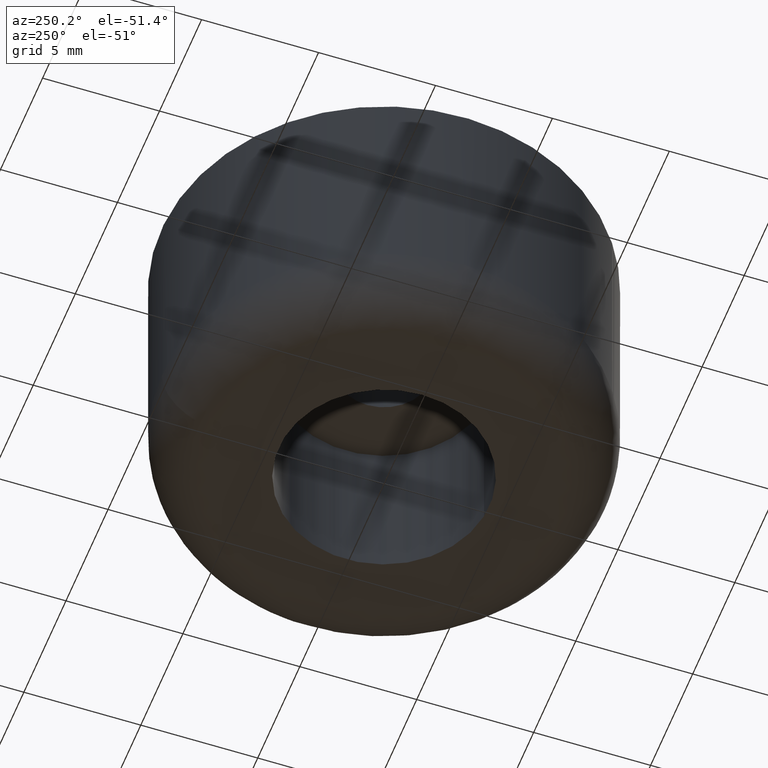
[diagram: clean part render]
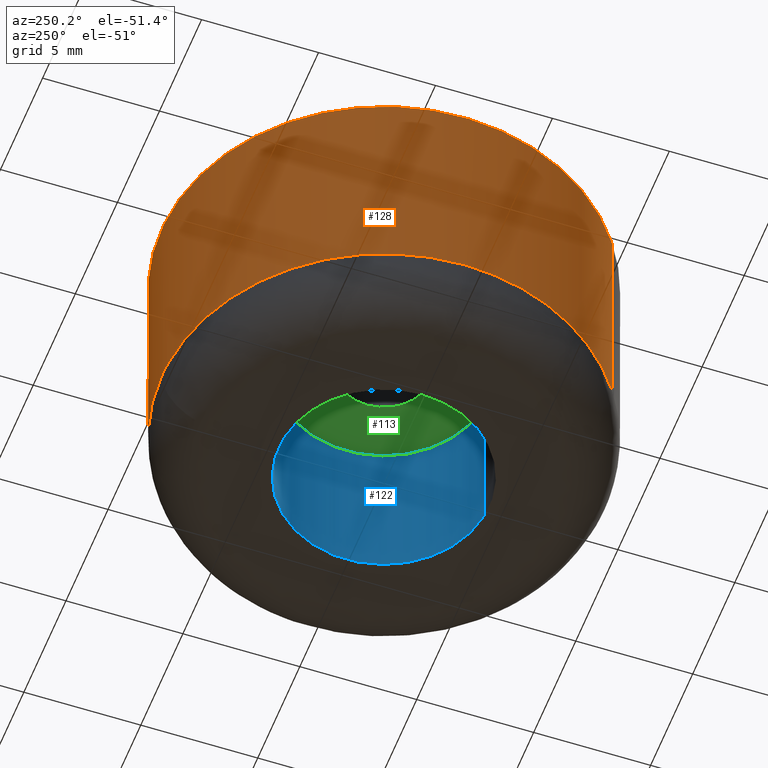
[diagram: same view with three faces highlighted in distinct colors, each labeled with its STEP entity id]
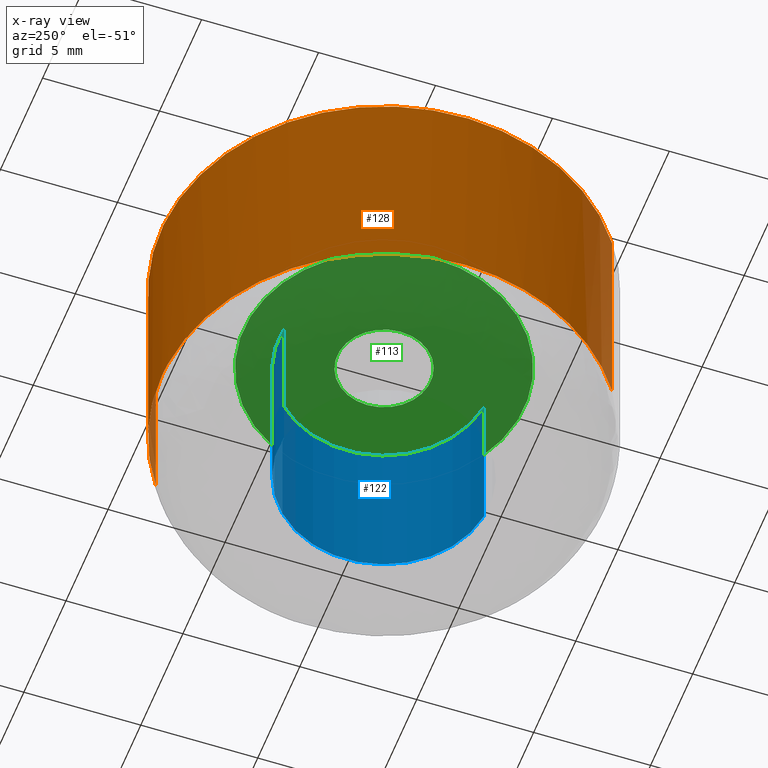
[diagram: x-ray of the same camera — body ghosted, the three highlighted faces saturated]
A machine part, auxiliary view with three faces highlighted in distinct colors.
The next image is the same camera in x-ray (body ghosted, the three faces saturated) — at least one of them is partly hidden behind the body in this view.
Their STEP definitions:

[orange] entity #128 — the highlighted cylindrical surface (partial cylindrical patch) has radius 9.5 mm, axis along (-0, 0, 1).
#128=ADVANCED_FACE('',(#299),#298,.T.);
#298=CYLINDRICAL_SURFACE('',#427,9.50000000000E+000);
#299=FACE_OUTER_BOUND('',#428,.T.);
#424=CARTESIAN_POINT('',(-3.04271018864E-015,3.51144497067E-015,1.22375000000E+001));
#425=DIRECTION('',(-5.20716812179E-016,7.03630289371E-016,1.00000000000E+000));
#426=DIRECTION('',(5.70840232490E-001,8.21061160311E-001,-2.80477395695E-016));
#427=AXIS2_PLACEMENT_3D('',#424,#425,#426);
#428=EDGE_LOOP('',(#572,#573,#574,#575,#576,#577,#578,#579));
#572=ORIENTED_EDGE('',*,*,#625,.T.);
#573=ORIENTED_EDGE('',*,*,#648,.F.);
#574=ORIENTED_EDGE('',*,*,#649,.F.);
#575=ORIENTED_EDGE('',*,*,#650,.F.);
#576=ORIENTED_EDGE('',*,*,#651,.F.);
#577=ORIENTED_EDGE('',*,*,#652,.F.);
#578=ORIENTED_EDGE('',*,*,#653,.F.);
#579=ORIENTED_EDGE('',*,*,#654,.T.);
#625=EDGE_CURVE('',#818,#810,#819,.T.);
#648=EDGE_CURVE('',#972,#810,#973,.T.);
#649=EDGE_CURVE('',#979,#972,#980,.T.);
#650=EDGE_CURVE('',#986,#979,#987,.T.);
#651=EDGE_CURVE('',#993,#986,#994,.T.);
#652=EDGE_CURVE('',#1000,#993,#1001,.T.);
#653=EDGE_CURVE('',#1007,#1000,#1008,.T.);
#654=EDGE_CURVE('',#1007,#818,#1014,.T.);
#810=VERTEX_POINT('',#1150);
#818=VERTEX_POINT('',#1156);
#819=CIRCLE('',#1160,9.50000000000E+000);
#972=VERTEX_POINT('',#1252);
#973=(BOUNDED_CURVE() B_SPLINE_CURVE(1,(#1253,#1254),.UNSPECIFIED.,.F.,.F.) B_SPLINE_CURVE_WITH_KNOTS((2,2),(8.33333343261E-002,9.16666667006E-001),.UNSPECIFIED.) CURVE() GEOMETRIC_REPRESENTATION_ITEM() RATIONAL_B_SPLINE_CURVE((1.00000000000E+000,1.00000000000E+000)) REPRESENTATION_ITEM('') );
#979=VERTEX_POINT('',#1255);
#980=CIRCLE('',#1259,9.50000000000E+000);
#986=VERTEX_POINT('',#1260);
#987=CIRCLE('',#1264,9.50000000000E+000);
#993=VERTEX_POINT('',#1265);
#994=CIRCLE('',#1269,9.50000000000E+000);
#1000=VERTEX_POINT('',#1270);
#1001=CIRCLE('',#1274,9.49999999947E+000);
#1007=VERTEX_POINT('',#1275);
#1008=CIRCLE('',#1279,9.50000000001E+000);
#1014=(BOUNDED_CURVE() B_SPLINE_CURVE(1,(#1280,#1281),.UNSPECIFIED.,.F.,.F.) B_SPLINE_CURVE_WITH_KNOTS((2,2),(8.33333333347E-002,9.16666666667E-001),.UNSPECIFIED.) CURVE() GEOMETRIC_REPRESENTATION_ITEM() RATIONAL_B_SPLINE_CURVE((7.50000000000E-001,7.50000000000E-001)) REPRESENTATION_ITEM('') );
#1150=CARTESIAN_POINT('',(5.42298194808E+000,7.80008120411E+000,1.20000000000E+001));
#1156=CARTESIAN_POINT('',(-5.42455823649E+000,-7.79898505826E+000,1.20000000000E+001));
#1157=CARTESIAN_POINT('',(-5.24913446043E-013,-2.26485497024E-014,1.20000000000E+001));
#1158=DIRECTION('',(2.07784528273E-015,1.74368434370E-015,-1.00000000000E+000));
#1159=DIRECTION('',(7.84585223781E-002,-9.96917378857E-001,-1.57528455486E-015));
#1160=AXIS2_PLACEMENT_3D('',#1157,#1158,#1159);
#1252=CARTESIAN_POINT('',(5.42298235624E+000,7.80008092035E+000,2.50000000054E+000));
#1253=CARTESIAN_POINT('',(5.42298220866E+000,7.80008102295E+000,2.50000001129E+000));
#1254=CARTESIAN_POINT('',(5.42298220866E+000,7.80008102295E+000,1.20000000039E+001));
#1255=CARTESIAN_POINT('',(5.23065606286E-006,9.50000000000E+000,2.50000000003E+000));
#1256=CARTESIAN_POINT('',(7.10542735760E-015,2.66453525910E-015,2.49999999995E+000));
#1257=DIRECTION('',(9.57293467828E-011,8.64344668673E-012,-1.00000000000E+000));
#1258=DIRECTION('',(6.97332515756E-002,-9.97565673840E-001,-1.94688709598E-012));
#1259=AXIS2_PLACEMENT_3D('',#1256,#1257,#1258);
#1260=CARTESIAN_POINT('',(-6.62465889968E-001,9.47687390148E+000,2.49999999997E+000));
#1261=CARTESIAN_POINT('',(7.10542735760E-015,2.66453525910E-015,2.49999999995E+000));
#1262=DIRECTION('',(9.57293467828E-011,8.64344668673E-012,-1.00000000000E+000));
#1263=DIRECTION('',(6.97332515756E-002,-9.97565673840E-001,-1.94688709598E-012));
#1264=AXIS2_PLACEMENT_3D('',#1261,#1262,#1263);
#1265=CARTESIAN_POINT('',(-9.50000000000E+000,0.00000000000E+000,2.50000000000E+000));
#1266=CARTESIAN_POINT('',(6.02184968557E-013,-5.64881474929E-013,2.49999999997E+000));
#1267=DIRECTION('',(-3.60633160761E-012,1.65272890385E-017,-1.00000000000E+000));
#1268=DIRECTION('',(1.00000000000E+000,-5.94612078873E-014,-3.60633160761E-012));
#1269=AXIS2_PLACEMENT_3D('',#1266,#1267,#1268);
#1270=CARTESIAN_POINT('',(-9.49924991994E+000,-1.19377378897E-001,2.49999999997E+000));
#1271=CARTESIAN_POINT('',(-5.25266941054E-010,-3.09630793227E-012,2.49999959731E+000));
#1272=DIRECTION('',(-4.23889162677E-008,-3.55077848317E-014,-1.00000000000E+000));
#1273=DIRECTION('',(9.99921044204E-001,1.25660398843E-002,-4.23855698633E-008));
#1274=AXIS2_PLACEMENT_3D('',#1271,#1272,#1273);
#1275=CARTESIAN_POINT('',(-5.42323242363E+000,-7.79990705581E+000,2.49999999999E+000));
#1276=CARTESIAN_POINT('',(7.26529947315E-012,4.59454696511E-012,2.49999999997E+000));
#1277=DIRECTION('',(9.30052199100E-016,-3.38918239541E-012,-1.00000000000E+000));
#1278=DIRECTION('',(5.70840059522E-001,8.21061280566E-001,-2.78219552659E-012));
#1279=AXIS2_PLACEMENT_3D('',#1276,#1277,#1278);
#1280=CARTESIAN_POINT('',(-5.42298220866E+000,-7.80008102295E+000,2.49999999998E+000));
#1281=CARTESIAN_POINT('',(-5.42298220866E+000,-7.80008102295E+000,1.20000000000E+001));

[blue] entity #122 — the highlighted cylindrical surface (partial cylindrical patch) has radius 4.5 mm, axis along (-0, -0, 1).
#122=ADVANCED_FACE('',(#239),#238,.F.);
#238=CYLINDRICAL_SURFACE('',#397,4.50000000000E+000);
#239=FACE_OUTER_BOUND('',#398,.T.);
#394=CARTESIAN_POINT('',(-1.39123543910E-014,-1.40301068486E-015,7.17500000000E+000));
#395=DIRECTION('',(-3.74568240344E-015,-4.45231132249E-016,1.00000000000E+000));
#396=DIRECTION('',(1.18034234657E-001,-9.93009526364E-001,-1.16850021586E-029));
#397=AXIS2_PLACEMENT_3D('',#394,#395,#396);
#398=EDGE_LOOP('',(#542,#543,#544,#545));
#542=ORIENTED_EDGE('',*,*,#622,.T.);
#543=ORIENTED_EDGE('',*,*,#642,.T.);
#544=ORIENTED_EDGE('',*,*,#634,.F.);
#545=ORIENTED_EDGE('',*,*,#643,.F.);
#622=EDGE_CURVE('',#797,#789,#798,.T.);
#634=EDGE_CURVE('',#874,#881,#882,.T.);
#642=EDGE_CURVE('',#789,#881,#936,.T.);
#643=EDGE_CURVE('',#797,#874,#942,.T.);
#789=VERTEX_POINT('',#1135);
#797=VERTEX_POINT('',#1141);
#798=CIRCLE('',#1145,4.50000000000E+000);
#874=VERTEX_POINT('',#1196);
#881=VERTEX_POINT('',#1201);
#882=CIRCLE('',#1205,4.50000000000E+000);
#936=(BOUNDED_CURVE() B_SPLINE_CURVE(1,(#1240,#1241),.UNSPECIFIED.,.F.,.F.) B_SPLINE_CURVE_WITH_KNOTS((2,2),(8.33333320912E-002,9.16666664070E-001),.UNSPECIFIED.) CURVE() GEOMETRIC_REPRESENTATION_ITEM() RATIONAL_B_SPLINE_CURVE((1.00000000000E+000,1.00000000000E+000)) REPRESENTATION_ITEM('') );
#942=(BOUNDED_CURVE() B_SPLINE_CURVE(1,(#1242,#1243),.UNSPECIFIED.,.F.,.F.) B_SPLINE_CURVE_WITH_KNOTS((2,2),(8.33333333333E-002,9.16666666667E-001),.UNSPECIFIED.) CURVE() GEOMETRIC_REPRESENTATION_ITEM() RATIONAL_B_SPLINE_CURVE((7.50000000000E-001,7.50000000000E-001)) REPRESENTATION_ITEM('') );
#1135=CARTESIAN_POINT('',(5.31152421835E-001,-4.46854306287E+000,-9.08420718080E-016));
#1141=CARTESIAN_POINT('',(-5.31926375409E-001,4.46845099907E+000,-4.55641233781E-016));
#1142=CARTESIAN_POINT('',(2.72315503480E-012,1.23767662785E-012,-6.81366651668E-016));
#1143=DIRECTION('',(1.68680868676E-015,2.51313810733E-016,-1.00000000000E+000));
#1144=DIRECTION('',(-1.00000000000E+000,-2.74669176292E-013,-1.68680868676E-015));
#1145=AXIS2_PLACEMENT_3D('',#1142,#1143,#1144);
#1196=CARTESIAN_POINT('',(-5.31926375409E-001,4.46845099907E+000,7.00000000000E+000));
#1201=CARTESIAN_POINT('',(5.31152421835E-001,-4.46854306287E+000,7.00000000000E+000));
#1202=CARTESIAN_POINT('',(2.78910228246E-012,1.26654242649E-012,7.00000000000E+000));
#1203=DIRECTION('',(-6.03527662489E-014,-9.55893432210E-015,-1.00000000000E+000));
#1204=DIRECTION('',(-1.00000000000E+000,-2.81552559045E-013,6.03527662489E-014));
#1205=AXIS2_PLACEMENT_3D('',#1202,#1203,#1204);
#1240=CARTESIAN_POINT('',(5.31154055955E-001,-4.46854286864E+000,-1.04336321805E-008));
#1241=CARTESIAN_POINT('',(5.31154055955E-001,-4.46854286864E+000,6.99999997819E+000));
#1242=CARTESIAN_POINT('',(-5.31154055955E-001,4.46854286864E+000,2.07241631263E-015));
#1243=CARTESIAN_POINT('',(-5.31154055955E-001,4.46854286864E+000,7.00000000000E+000));

[green] entity #113 — the highlighted planar face has unit normal (0, 0, 1).
#113=ADVANCED_FACE('',(#144,#145),#143,.F.);
#143=PLANE('',#347);
#144=FACE_OUTER_BOUND('',#348,.T.);
#145=FACE_BOUND('',#349,.T.);
#344=CARTESIAN_POINT('',(-7.80000000000E+000,-1.24707658145E+001,7.00000000000E+000));
#345=DIRECTION('',(0.00000000000E+000,0.00000000000E+000,1.00000000000E+000));
#346=DIRECTION('',(1.00000000000E+000,0.00000000000E+000,0.00000000000E+000));
#347=AXIS2_PLACEMENT_3D('',#344,#345,#346);
#348=EDGE_LOOP('',(#492,#493,#494));
#349=EDGE_LOOP('',(#495,#496,#497));
#492=ORIENTED_EDGE('',*,*,#608,.T.);
#493=ORIENTED_EDGE('',*,*,#609,.T.);
#494=ORIENTED_EDGE('',*,*,#610,.T.);
#495=ORIENTED_EDGE('',*,*,#611,.F.);
#496=ORIENTED_EDGE('',*,*,#612,.F.);
#497=ORIENTED_EDGE('',*,*,#613,.F.);
#608=EDGE_CURVE('',#702,#703,#704,.T.);
#609=EDGE_CURVE('',#703,#710,#711,.T.);
#610=EDGE_CURVE('',#710,#702,#717,.T.);
#611=EDGE_CURVE('',#723,#724,#725,.T.);
#612=EDGE_CURVE('',#731,#723,#732,.T.);
#613=EDGE_CURVE('',#724,#731,#738,.T.);
#702=VERTEX_POINT('',#1082);
#703=VERTEX_POINT('',#1083);
#704=CIRCLE('',#1087,6.00000000000E+000);
#710=VERTEX_POINT('',#1088);
#711=CIRCLE('',#1092,6.00000000000E+000);
#717=CIRCLE('',#1096,6.00000000000E+000);
#723=VERTEX_POINT('',#1097);
#724=VERTEX_POINT('',#1098);
#725=CIRCLE('',#1102,2.00000000000E+000);
#731=VERTEX_POINT('',#1103);
#732=CIRCLE('',#1107,2.00000000000E+000);
#738=CIRCLE('',#1111,2.00000000000E+000);
#1082=CARTESIAN_POINT('',(-6.00000000000E+000,-6.66133814775E-016,7.00000000000E+000));
#1083=CARTESIAN_POINT('',(-7.09235160270E-001,5.95793466626E+000,7.00000000000E+000));
#1084=CARTESIAN_POINT('',(1.20792265079E-013,5.50670620214E-014,7.00000000000E+000));
#1085=DIRECTION('',(-2.93794167468E-014,-4.68475870979E-015,-1.00000000000E+000));
#1086=DIRECTION('',(-1.00000000000E+000,-8.89566198481E-015,2.93794167468E-014));
#1087=AXIS2_PLACEMENT_3D('',#1084,#1085,#1086);
#1088=CARTESIAN_POINT('',(7.08205350219E-001,-5.95805716504E+000,7.00000000000E+000));
#1089=CARTESIAN_POINT('',(1.20792265079E-013,5.50670620214E-014,7.00000000000E+000));
#1090=DIRECTION('',(-2.93794167468E-014,-4.68475870979E-015,-1.00000000000E+000));
#1091=DIRECTION('',(-1.00000000000E+000,-8.89566198481E-015,2.93794167468E-014));
#1092=AXIS2_PLACEMENT_3D('',#1089,#1090,#1091);
#1093=CARTESIAN_POINT('',(1.20792265079E-013,5.50670620214E-014,7.00000000000E+000));
#1094=DIRECTION('',(-2.93794167468E-014,-4.68475870979E-015,-1.00000000000E+000));
#1095=DIRECTION('',(-1.00000000000E+000,-8.89566198481E-015,2.93794167468E-014));
#1096=AXIS2_PLACEMENT_3D('',#1093,#1094,#1095);
#1097=CARTESIAN_POINT('',(2.36066404379E-001,-1.98601929817E+000,7.00000000000E+000));
#1098=CARTESIAN_POINT('',(-1.99999999999E+000,-4.16333634234E-016,7.00000000000E+000));
#1099=CARTESIAN_POINT('',(4.30511182259E-012,1.95710114781E-012,7.00000000000E+000));
#1100=DIRECTION('',(1.40882909647E-012,2.08602087044E-013,-1.00000000000E+000));
#1101=DIRECTION('',(-1.00000000000E+000,-9.78397918239E-013,-1.40882909647E-012));
#1102=AXIS2_PLACEMENT_3D('',#1099,#1100,#1101);
#1103=CARTESIAN_POINT('',(-2.36410143219E-001,1.98597840979E+000,7.00000000000E+000));
#1104=CARTESIAN_POINT('',(4.30511182259E-012,1.95710114781E-012,7.00000000000E+000));
#1105=DIRECTION('',(1.40882909647E-012,2.08602087044E-013,-1.00000000000E+000));
#1106=DIRECTION('',(-1.00000000000E+000,-9.78397918239E-013,-1.40882909647E-012));
#1107=AXIS2_PLACEMENT_3D('',#1104,#1105,#1106);
#1108=CARTESIAN_POINT('',(4.30511182259E-012,1.95710114781E-012,7.00000000000E+000));
#1109=DIRECTION('',(1.40882909647E-012,2.08602087044E-013,-1.00000000000E+000));
#1110=DIRECTION('',(-1.00000000000E+000,-9.78397918239E-013,-1.40882909647E-012));
#1111=AXIS2_PLACEMENT_3D('',#1108,#1109,#1110);